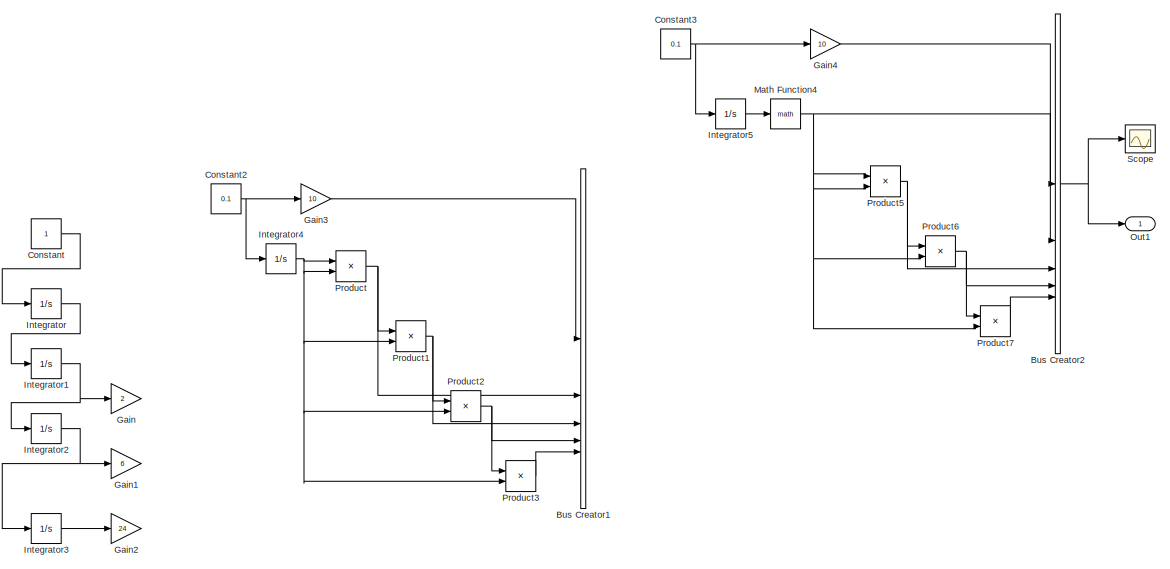
[diagram: root canvas - part 1/3, top right region]
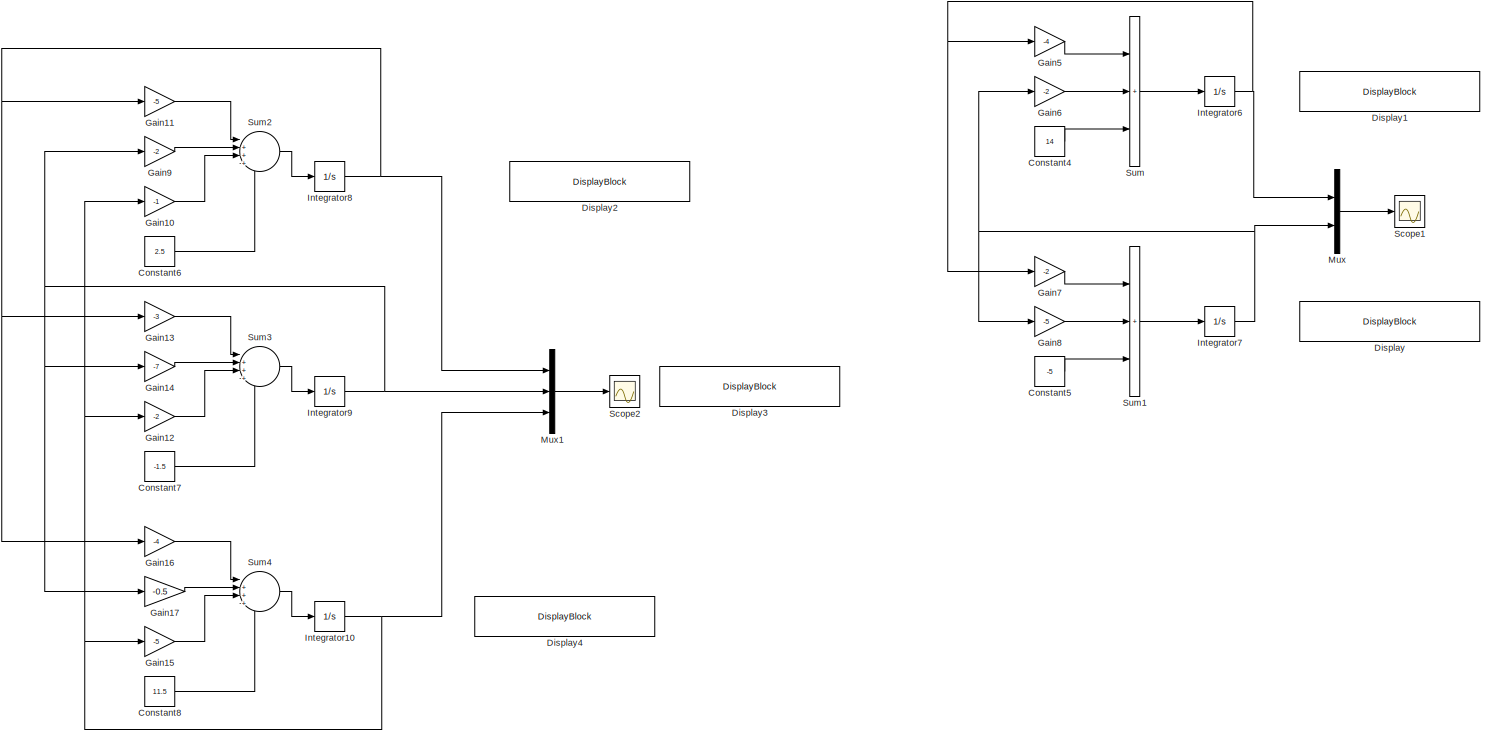
[diagram: root canvas - part 2/3, middle left region]
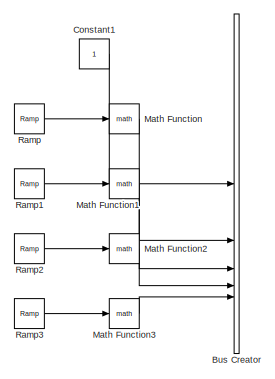
[diagram: root canvas - part 3/3, bottom right region]
MODEL slx_d9307b098c39
KIND model
CONFIG AbsTol = auto
CONFIG EnableMultiTasking = off
CONFIG FixedStep = auto
CONFIG MaxStep = auto
CONFIG MinStep = auto
CONFIG RelTol = 1e-3
CONFIG SampleTimeConstraint = Unconstrained
CONFIG SolverName = VariableStepAuto
CONFIG StartTime = 0.0
CONFIG StopTime = 10
BLOCK [BusCreator] Bus Creator
  DisplayOption = bar
  InheritFromInputs = on
  Inputs = 5
BLOCK [BusCreator] Bus Creator1
  DisplayOption = bar
  InheritFromInputs = on
  Inputs = 5
BLOCK [BusCreator] Bus Creator2
  DisplayOption = bar
  InheritFromInputs = on
  Inputs = 5
BLOCK [Constant] Constant
BLOCK [Constant] Constant1
BLOCK [Constant] Constant2
  Value = 0.1
BLOCK [Constant] Constant3
  Value = 0.1
BLOCK [Constant] Constant4
  Value = 14
BLOCK [Constant] Constant5
  Value = -5
BLOCK [Constant] Constant6
  Value = 2.5
BLOCK [Constant] Constant7
  Value = -1.5
BLOCK [Constant] Constant8
  Value = 11.5
BLOCK [DisplayBlock] Display
  LabelPosition = Hide
  Transparency = 1
BLOCK [DisplayBlock] Display1
  LabelPosition = Hide
  Transparency = 1
BLOCK [DisplayBlock] Display2
  LabelPosition = Hide
  Transparency = 1
BLOCK [DisplayBlock] Display3
  LabelPosition = Hide
  Transparency = 1
BLOCK [DisplayBlock] Display4
  LabelPosition = Hide
  Transparency = 1
BLOCK [Gain] Gain
  Gain = 2
BLOCK [Gain] Gain1
  Gain = 6
BLOCK [Gain] Gain10
  Gain = -1
BLOCK [Gain] Gain11
  Gain = -5
BLOCK [Gain] Gain12
  Gain = -2
BLOCK [Gain] Gain13
  Gain = -3
BLOCK [Gain] Gain14
  Gain = -7
BLOCK [Gain] Gain15
  Gain = -5
BLOCK [Gain] Gain16
  Gain = -4
BLOCK [Gain] Gain17
  Gain = -0.5
BLOCK [Gain] Gain2
  Gain = 24
BLOCK [Gain] Gain3
  Gain = 10
BLOCK [Gain] Gain4
  Gain = 10
BLOCK [Gain] Gain5
  Gain = -4
BLOCK [Gain] Gain6
  Gain = -2
BLOCK [Gain] Gain7
  Gain = -2
BLOCK [Gain] Gain8
  Gain = -5
BLOCK [Gain] Gain9
  Gain = -2
BLOCK [Integrator] Integrator
BLOCK [Integrator] Integrator1
BLOCK [Integrator] Integrator10
BLOCK [Integrator] Integrator2
BLOCK [Integrator] Integrator3
BLOCK [Integrator] Integrator4
BLOCK [Integrator] Integrator5
BLOCK [Integrator] Integrator6
BLOCK [Integrator] Integrator7
BLOCK [Integrator] Integrator8
BLOCK [Integrator] Integrator9
BLOCK [Math] Math Function
BLOCK [Math] Math Function1
BLOCK [Math] Math Function2
BLOCK [Math] Math Function3
BLOCK [Math] Math Function4
BLOCK [Mux] Mux
  DisplayOption = bar
  Inputs = 2
BLOCK [Mux] Mux1
  DisplayOption = bar
  Inputs = 3
BLOCK [Outport] Out1
BLOCK [Product] Product
BLOCK [Product] Product1
BLOCK [Product] Product2
BLOCK [Product] Product3
BLOCK [Product] Product5
BLOCK [Product] Product6
BLOCK [Product] Product7
BLOCK [Reference] Ramp  REF=simulink/Sources/Ramp
  SourceBlock = simulink/Sources/Ramp
  SourceType = Ramp
BLOCK [Reference] Ramp1  REF=simulink/Sources/Ramp
  SourceBlock = simulink/Sources/Ramp
  SourceType = Ramp
BLOCK [Reference] Ramp2  REF=simulink/Sources/Ramp
  SourceBlock = simulink/Sources/Ramp
  SourceType = Ramp
BLOCK [Reference] Ramp3  REF=simulink/Sources/Ramp
  SourceBlock = simulink/Sources/Ramp
  SourceType = Ramp
BLOCK [Scope] Scope
  Floating = off
  NumInputPorts = 1
  ScopeSpecificationString = Simulink.scopes.TimeScopeBlockCfg('CurrentConfiguration', extmgr.ConfigurationSet(extmgr.Configuration('Core','General UI',true),extmgr.Configuration('Core','Source UI',true),extmgr.Configuration('Sources','WiredSimulink',true),extmgr.Configuration('Visuals','Time Domain',true,'SerializedDisplays',{struct('MinYLimReal','-1.285','MaxYLimReal','5.74327','YLabelReal','','MinYLimMag','0.00000','MaxYLi...<+1470ch>
BLOCK [Scope] Scope1
  Floating = off
  NumInputPorts = 1
  ScopeSpecificationString = Simulink.scopes.TimeScopeBlockCfg('CurrentConfiguration', extmgr.ConfigurationSet(extmgr.Configuration('Core','General UI',true),extmgr.Configuration('Core','Source UI',true),extmgr.Configuration('Sources','WiredSimulink',true,'DataLoggingVariableName','ScopeData1'),extmgr.Configuration('Visuals','Time Domain',true,'SerializedDisplays',{struct('MinYLimReal','-4.00000','MaxYLimReal','6.00000','YLab...<+1774ch>
BLOCK [Scope] Scope2
  Floating = off
  NumInputPorts = 1
  ScopeSpecificationString = Simulink.scopes.TimeScopeBlockCfg('CurrentConfiguration', extmgr.ConfigurationSet(extmgr.Configuration('Core','General UI',true),extmgr.Configuration('Core','Source UI',true),extmgr.Configuration('Sources','WiredSimulink',true,'DataLoggingVariableName','ScopeData2'),extmgr.Configuration('Visuals','Time Domain',true,'SerializedDisplays',{struct('MinYLimReal','-1.37837','MaxYLimReal','2.40365','YLab...<+1454ch>
BLOCK [Sum] Sum
  IconShape = rectangular
  Inputs = +++
BLOCK [Sum] Sum1
  IconShape = rectangular
  Inputs = +++
BLOCK [Sum] Sum2
  Inputs = |++++
BLOCK [Sum] Sum3
  Inputs = |++++
BLOCK [Sum] Sum4
  Inputs = |++++
NET Bus Creator2:1 -> Out1:1, Scope:1
LINE Constant1:1 -> Bus Creator:1
NET Constant2:1 -> Gain3:1, Integrator4:1
NET Constant3:1 -> Gain4:1, Integrator5:1
LINE Constant4:1 -> Sum:3
LINE Constant5:1 -> Sum1:3
LINE Constant6:1 -> Sum2:4
LINE Constant7:1 -> Sum3:4
LINE Constant8:1 -> Sum4:4
LINE Constant:1 -> Integrator:1
LINE Gain10:1 -> Sum2:3
LINE Gain11:1 -> Sum2:1
LINE Gain12:1 -> Sum3:3
LINE Gain13:1 -> Sum3:1
LINE Gain14:1 -> Sum3:2
LINE Gain15:1 -> Sum4:3
LINE Gain16:1 -> Sum4:1
LINE Gain17:1 -> Sum4:2
LINE Gain3:1 -> Bus Creator1:1
LINE Gain4:1 -> Bus Creator2:1
LINE Gain5:1 -> Sum:1
LINE Gain6:1 -> Sum:2
LINE Gain7:1 -> Sum1:1
LINE Gain8:1 -> Sum1:2
LINE Gain9:1 -> Sum2:2
NET Integrator10:1 -> Gain10:1, Gain12:1, Gain15:1, Mux1:3
NET Integrator1:1 -> Gain:1, Integrator2:1
NET Integrator2:1 -> Gain1:1, Integrator3:1
LINE Integrator3:1 -> Gain2:1
NET Integrator4:1 -> Product1:2, Product2:2, Product3:2, Product:1, Product:2
LINE Integrator5:1 -> Math Function4:1
NET Integrator6:1 -> Gain5:1, Gain7:1, Mux:1
NET Integrator7:1 -> Gain6:1, Gain8:1, Mux:2
NET Integrator8:1 -> Gain11:1, Gain13:1, Gain16:1, Mux1:1
NET Integrator9:1 -> Gain14:1, Gain17:1, Gain9:1, Mux1:2
LINE Integrator:1 -> Integrator1:1
LINE Math Function1:1 -> Bus Creator:3
LINE Math Function2:1 -> Bus Creator:4
LINE Math Function3:1 -> Bus Creator:5
NET Math Function4:1 -> Bus Creator2:2, Product5:1, Product5:2, Product6:2, Product7:2
LINE Math Function:1 -> Bus Creator:2
LINE Mux1:1 -> Scope2:1
LINE Mux:1 -> Scope1:1
NET Product1:1 -> Bus Creator1:3, Product2:1
NET Product2:1 -> Bus Creator1:4, Product3:1
LINE Product3:1 -> Bus Creator1:5
NET Product5:1 -> Bus Creator2:3, Product6:1
NET Product6:1 -> Bus Creator2:4, Product7:1
LINE Product7:1 -> Bus Creator2:5
NET Product:1 -> Bus Creator1:2, Product1:1
LINE Ramp1:1 -> Math Function1:1
LINE Ramp2:1 -> Math Function2:1
LINE Ramp3:1 -> Math Function3:1
LINE Ramp:1 -> Math Function:1
LINE Sum1:1 -> Integrator7:1
LINE Sum2:1 -> Integrator8:1
LINE Sum3:1 -> Integrator9:1
LINE Sum4:1 -> Integrator10:1
LINE Sum:1 -> Integrator6:1
note: NET lines group one-source signal fan-out (src -> all destinations, sorted); 1:1 wires keep LINE
